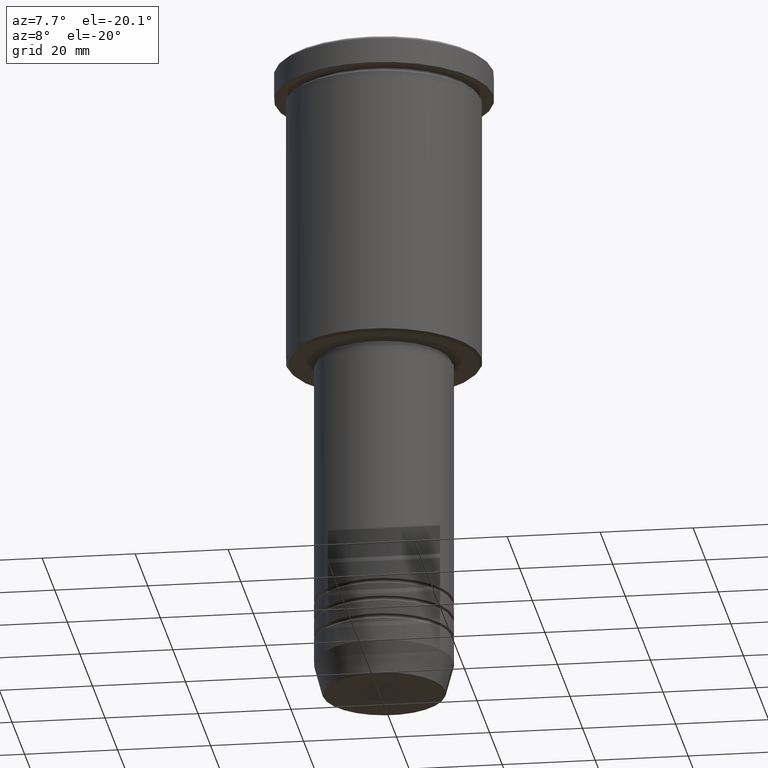
[diagram: clean part render]
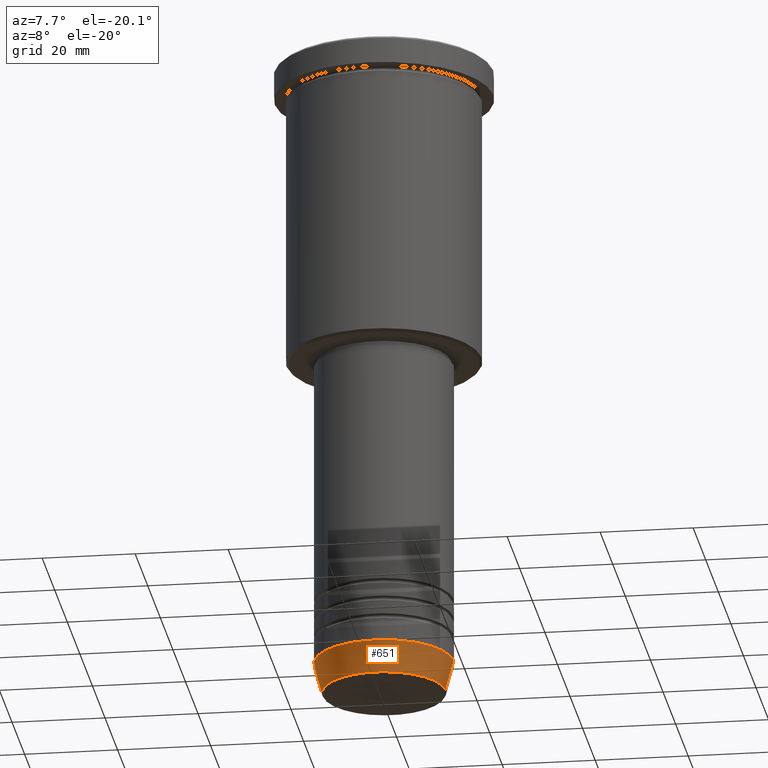
[diagram: same view with one face highlighted and labeled with its STEP entity id]
A machine part, auxiliary view. The second image highlights one B-rep face of the part: STEP entity #651.
In plain terms, the highlighted conical surface has half-angle 15 deg.
Its self-contained STEP definition (entity closure, byte-faithful):
#17 = ORIENTED_EDGE ( 'NONE', *, *, #86, .F. ) ;
#25 = VECTOR ( 'NONE', #558, 1000.000000000000000 ) ;
#36 = DIRECTION ( 'NONE',  ( -0.000000000000000000, -0.000000000000000000, 1.000000000000000000 ) ) ;
#83 = CARTESIAN_POINT ( 'NONE',  ( -15.00000000000000000, 1.836970198721029589E-15, -134.0000000000000000 ) ) ;
#86 = EDGE_CURVE ( 'NONE', #942, #280, #1003, .T. ) ;
#109 = DIRECTION ( 'NONE',  ( -0.000000000000000000, -0.000000000000000000, 1.000000000000000000 ) ) ;
#115 = CARTESIAN_POINT ( 'NONE',  ( 0.000000000000000000, 0.000000000000000000, -134.0000000000000000 ) ) ;
#154 = EDGE_CURVE ( 'NONE', #504, #1145, #377, .T. ) ;
#270 = CARTESIAN_POINT ( 'NONE',  ( 15.00000000000000000, 0.000000000000000000, -134.0000000000000000 ) ) ;
#280 = VERTEX_POINT ( 'NONE', #422 ) ;
#323 = EDGE_LOOP ( 'NONE', ( #17, #1092, #1007, #593 ) ) ;
#327 = DIRECTION ( 'NONE',  ( -0.000000000000000000, -0.000000000000000000, 1.000000000000000000 ) ) ;
#377 = LINE ( 'NONE', #710, #1129 ) ;
#422 = CARTESIAN_POINT ( 'NONE',  ( -15.00000000000000000, 1.836970198721029589E-15, -134.0000000000000000 ) ) ;
#470 = DIRECTION ( 'NONE',  ( 1.000000000000000000, 0.000000000000000000, 0.000000000000000000 ) ) ;
#504 = VERTEX_POINT ( 'NONE', #677 ) ;
#517 = CIRCLE ( 'NONE', #853, 15.00000000000000000 ) ;
#539 = AXIS2_PLACEMENT_3D ( 'NONE', #683, #327, #689 ) ;
#558 = DIRECTION ( 'NONE',  ( -0.2588190451025213501, 3.169619151431772337E-17, 0.9659258262890680902 ) ) ;
#587 = EDGE_CURVE ( 'NONE', #280, #1145, #517, .T. ) ;
#593 = ORIENTED_EDGE ( 'NONE', *, *, #587, .F. ) ;
#609 = CARTESIAN_POINT ( 'NONE',  ( -13.22365507213719660, 1.728200442216588780E-15, -140.6294095225512706 ) ) ;
#651 = ADVANCED_FACE ( 'NONE', ( #926 ), #704, .T. ) ;
#677 = CARTESIAN_POINT ( 'NONE',  ( 13.22365507213719482, 0.000000000000000000, -140.6294095225512706 ) ) ;
#683 = CARTESIAN_POINT ( 'NONE',  ( 0.000000000000000000, 0.000000000000000000, -140.6294095225512706 ) ) ;
#689 = DIRECTION ( 'NONE',  ( 1.000000000000000000, 0.000000000000000000, 0.000000000000000000 ) ) ;
#704 = CONICAL_SURFACE ( 'NONE', #912, 15.00000000000000000, 0.2617993877991500740 ) ;
#710 = CARTESIAN_POINT ( 'NONE',  ( 15.00000000000000000, 0.000000000000000000, -134.0000000000000000 ) ) ;
#817 = CARTESIAN_POINT ( 'NONE',  ( 0.000000000000000000, 0.000000000000000000, -134.0000000000000000 ) ) ;
#853 = AXIS2_PLACEMENT_3D ( 'NONE', #817, #36, #470 ) ;
#912 = AXIS2_PLACEMENT_3D ( 'NONE', #115, #109, #1025 ) ;
#926 = FACE_OUTER_BOUND ( 'NONE', #323, .T. ) ;
#942 = VERTEX_POINT ( 'NONE', #609 ) ;
#956 = EDGE_CURVE ( 'NONE', #942, #504, #1067, .T. ) ;
#1003 = LINE ( 'NONE', #83, #25 ) ;
#1007 = ORIENTED_EDGE ( 'NONE', *, *, #154, .T. ) ;
#1025 = DIRECTION ( 'NONE',  ( 1.000000000000000000, 0.000000000000000000, 0.000000000000000000 ) ) ;
#1067 = CIRCLE ( 'NONE', #539, 13.22365507213719482 ) ;
#1092 = ORIENTED_EDGE ( 'NONE', *, *, #956, .T. ) ;
#1100 = DIRECTION ( 'NONE',  ( 0.2588190451025213501, 0.000000000000000000, 0.9659258262890680902 ) ) ;
#1129 = VECTOR ( 'NONE', #1100, 1000.000000000000000 ) ;
#1145 = VERTEX_POINT ( 'NONE', #270 ) ;